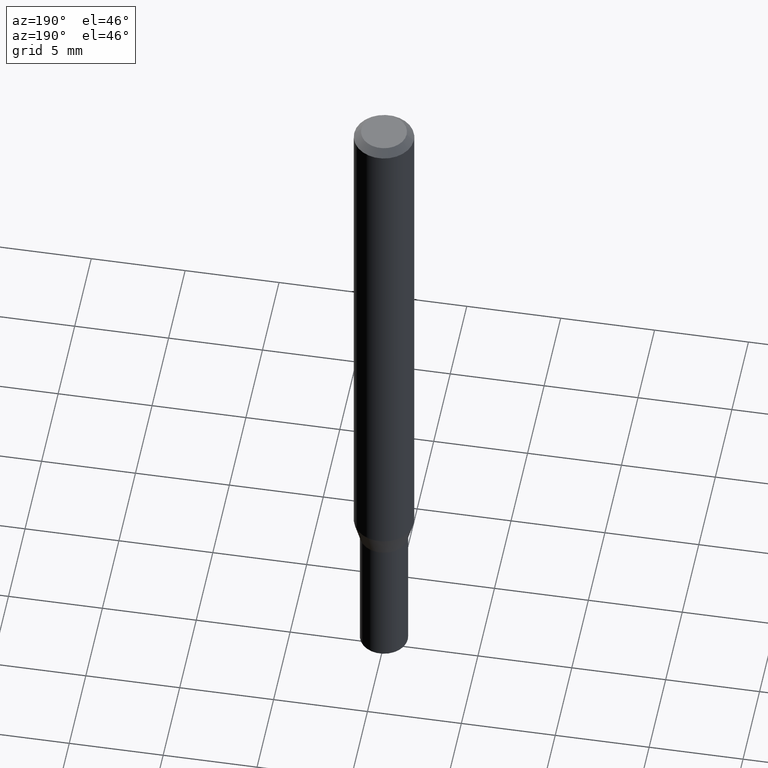
[diagram: clean part render]
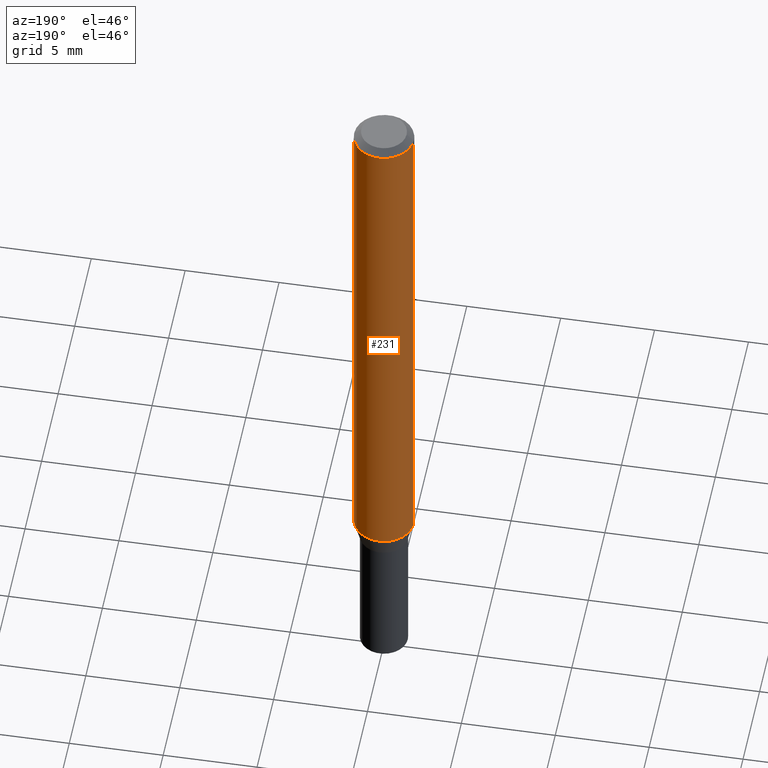
[diagram: same view with one face highlighted and labeled with its STEP entity id]
A machine part, auxiliary view. The second image highlights one B-rep face of the part: STEP entity #231.
In plain terms, the highlighted cylindrical surface (edge-blend (fillet) strip) has radius 1.5875 mm, axis along (-0, 0, 1).
Its self-contained STEP definition (entity closure, byte-faithful):
#22 = LINE ( 'NONE', #92, #461 ) ;
#34 = DIRECTION ( 'NONE',  ( -2.445468806185136877E-29, 3.491481338843145188E-15, 1.000000000000000000 ) ) ;
#39 = ORIENTED_EDGE ( 'NONE', *, *, #93, .T. ) ;
#40 = ORIENTED_EDGE ( 'NONE', *, *, #312, .F. ) ;
#44 = AXIS2_PLACEMENT_3D ( 'NONE', #270, #408, #306 ) ;
#54 = CYLINDRICAL_SURFACE ( 'NONE', #44, 0.06250000000000000000 ) ;
#78 = AXIS2_PLACEMENT_3D ( 'NONE', #399, #368, #442 ) ;
#92 = CARTESIAN_POINT ( 'NONE',  ( 0.06250000000000000000, -4.364351673553916694E-16, 3.047610484872459871E-30 ) ) ;
#93 = EDGE_CURVE ( 'NONE', #397, #420, #356, .T. ) ;
#94 = EDGE_CURVE ( 'NONE', #420, #216, #159, .T. ) ;
#123 = EDGE_CURVE ( 'NONE', #253, #216, #327, .T. ) ;
#132 = FACE_OUTER_BOUND ( 'NONE', #184, .T. ) ;
#159 = LINE ( 'NONE', #299, #160 ) ;
#160 = VECTOR ( 'NONE', #34, 39.37007874015748143 ) ;
#177 = CARTESIAN_POINT ( 'NONE',  ( 0.06250000000000000000, -4.463332952089153109E-15, -1.153349364905389640 ) ) ;
#184 = EDGE_LOOP ( 'NONE', ( #39, #458, #246, #40 ) ) ;
#195 = DIRECTION ( 'NONE',  ( -2.445468806185136597E-29, 3.491481338843145583E-15, 1.000000000000000000 ) ) ;
#201 = CARTESIAN_POINT ( 'NONE',  ( 0.06250000000000000000, -4.888073874380388472E-16, -0.01499999999999999944 ) ) ;
#203 = AXIS2_PLACEMENT_3D ( 'NONE', #296, #195, #297 ) ;
#216 = VERTEX_POINT ( 'NONE', #337 ) ;
#231 = ADVANCED_FACE ( 'NONE', ( #132 ), #54, .T. ) ;
#245 = DIRECTION ( 'NONE',  ( -2.445468806185136877E-29, 3.491481338843145188E-15, 1.000000000000000000 ) ) ;
#246 = ORIENTED_EDGE ( 'NONE', *, *, #123, .F. ) ;
#253 = VERTEX_POINT ( 'NONE', #201 ) ;
#270 = CARTESIAN_POINT ( 'NONE',  ( 0.000000000000000000, 0.000000000000000000, 0.000000000000000000 ) ) ;
#296 = CARTESIAN_POINT ( 'NONE',  ( 2.820479894509568805E-29, -4.026897784733760650E-15, -1.153349364905389640 ) ) ;
#297 = DIRECTION ( 'NONE',  ( 1.000000000000000000, -6.982962677686270655E-15, 0.000000000000000000 ) ) ;
#299 = CARTESIAN_POINT ( 'NONE',  ( -0.06250000000000000000, 4.440892098500626162E-16, -3.074334431409316114E-30 ) ) ;
#306 = DIRECTION ( 'NONE',  ( 1.000000000000000000, -6.982962677686266711E-15, 4.876176775795935793E-29 ) ) ;
#312 = EDGE_CURVE ( 'NONE', #397, #253, #22, .T. ) ;
#315 = CARTESIAN_POINT ( 'NONE',  ( -0.06250000000000000000, -3.582808574883698823E-15, -1.153349364905389640 ) ) ;
#327 = CIRCLE ( 'NONE', #78, 0.06250000000000000000 ) ;
#337 = CARTESIAN_POINT ( 'NONE',  ( -0.06250000000000000000, -1.595545792558141446E-15, -0.01499999999999999944 ) ) ;
#356 = CIRCLE ( 'NONE', #203, 0.06250000000000000000 ) ;
#368 = DIRECTION ( 'NONE',  ( -2.445468806185136597E-29, 3.491481338843145583E-15, 1.000000000000000000 ) ) ;
#397 = VERTEX_POINT ( 'NONE', #177 ) ;
#399 = CARTESIAN_POINT ( 'NONE',  ( 3.668203209277705088E-31, -5.237222008264718399E-17, -0.01499999999999999944 ) ) ;
#408 = DIRECTION ( 'NONE',  ( -2.445468806185136597E-29, 3.491481338843145583E-15, 1.000000000000000000 ) ) ;
#420 = VERTEX_POINT ( 'NONE', #315 ) ;
#442 = DIRECTION ( 'NONE',  ( 1.000000000000000000, -6.982962677686266711E-15, 0.000000000000000000 ) ) ;
#458 = ORIENTED_EDGE ( 'NONE', *, *, #94, .T. ) ;
#461 = VECTOR ( 'NONE', #245, 39.37007874015748143 ) ;